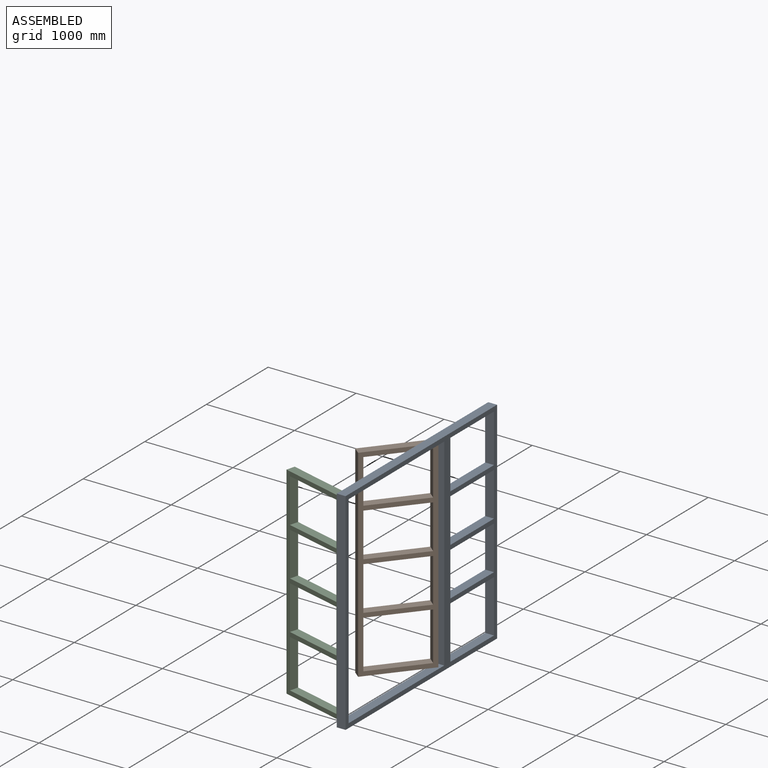
[diagram: assembled view]
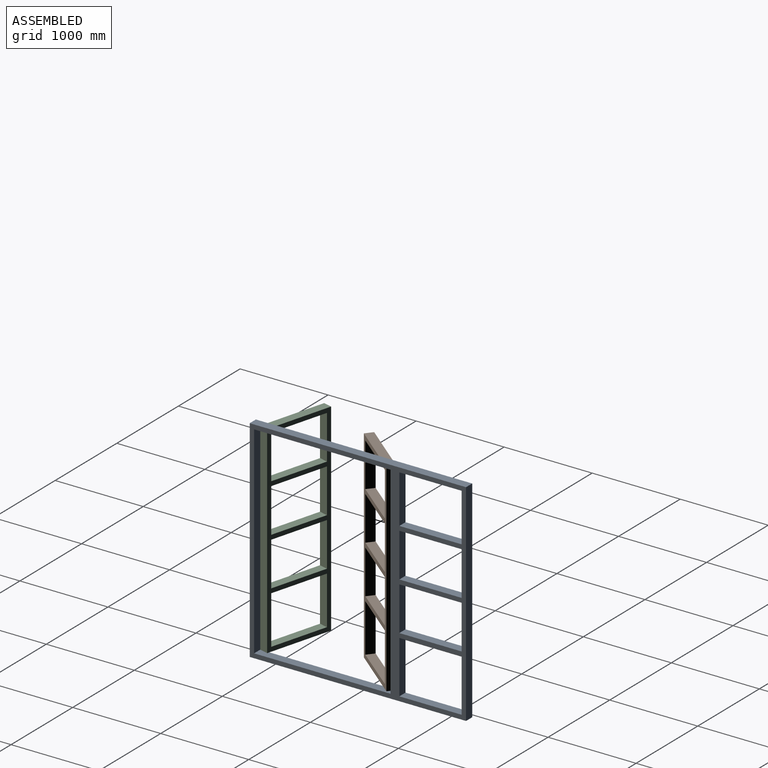
[diagram: assembled view, second angle]
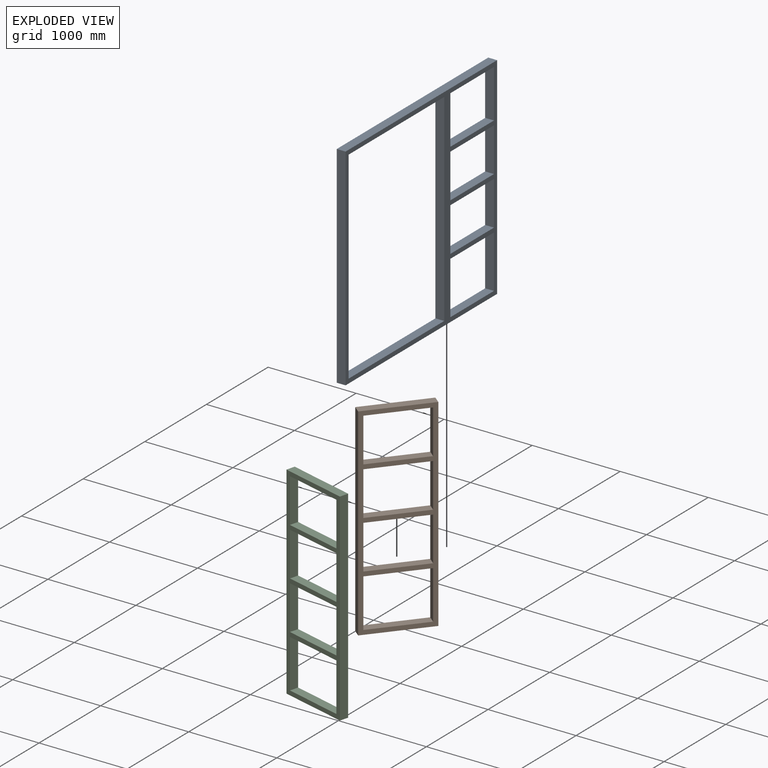
[diagram: exploded view]
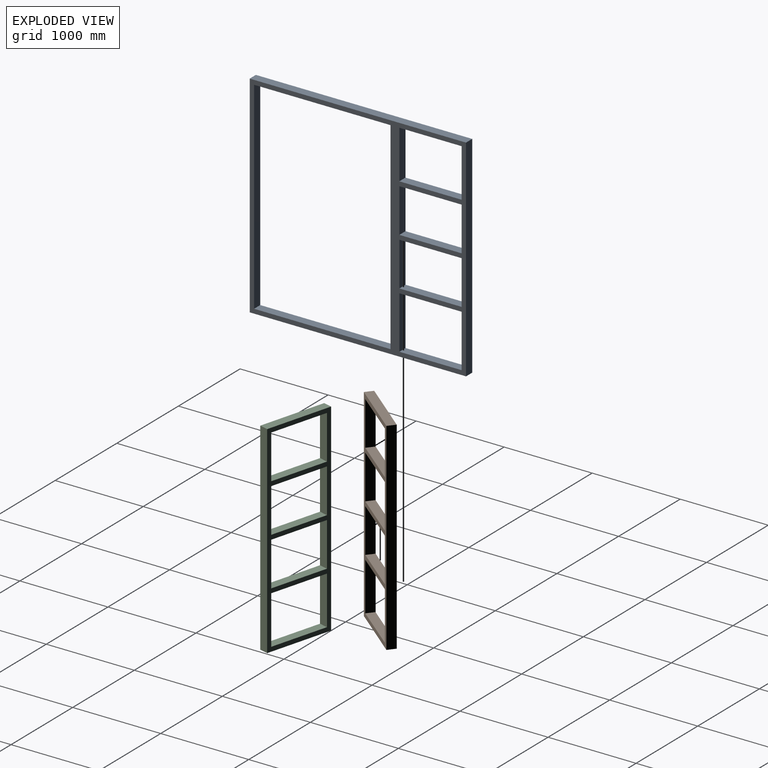
[diagram: exploded view, second angle]
ASSEMBLY  parts=3 mates=2
PART A: 26 faces, bbox 100x2457.5x2400 mm
  f0: plane 2457.54x100mm, normal (0,0,1), area 245753.9mm2, adj f1,f7,f8,f25
  f1: plane 2400x100mm, normal (0,-1,0), area 240000mm2, adj f0,f2,f7,f8
  f2: plane 2457.54x100mm, normal (0,0,-1), area 245753.9mm2, adj f1,f7,f8,f25
  f3: plane 2300x100mm, normal (0,-1,0), area 230000mm2, adj f4,f6,f7,f8
  f4: plane 1550x100mm, normal (0,0,1), area 155000mm2, adj f3,f5,f7,f8
  f5: plane 2300x100mm, normal (0,1,0), area 230000mm2, adj f4,f6,f7,f8
  f6: plane 1550x100mm, normal (0,0,-1), area 155000mm2, adj f3,f5,f7,f8
  f7: plane 2457.54x2400mm, normal (1,0,0), area 811884.7mm2, adj f0,f1,f2,f3,f4,f5,f6,f9
  f8: plane 2457.54x2400mm, normal (-1,0,0), area 811884.7mm2, adj f0,f1,f2,f3,f4,f5,f6,f9
  f9: plane 707.54x100mm, normal (0,0,1), area 70753.9mm2, adj f7,f8,f10,f21
  f10: plane 550x100mm, normal (0,1,0), area 55000mm2, adj f7,f8,f9,f11
  f11: plane 707.54x100mm, normal (0,0,-1), area 70753.9mm2, adj f7,f8,f10,f21
  f12: plane 500x100mm, normal (0,1,0), area 50000mm2, adj f7,f8,f13,f22
  f13: plane 707.54x100mm, normal (0,0,-1), area 70753.9mm2, adj f7,f8,f12,f14
  f14: plane 500x100mm, normal (0,-1,0), area 50000mm2, adj f7,f8,f13,f22
  f15: plane 500x100mm, normal (0,1,0), area 50000mm2, adj f7,f8,f16,f23
  f16: plane 707.54x100mm, normal (0,0,-1), area 70753.9mm2, adj f7,f8,f15,f17
  f17: plane 500x100mm, normal (0,-1,0), area 50000mm2, adj f7,f8,f16,f23
  f18: plane 600x100mm, normal (0,1,0), area 60000mm2, adj f7,f8,f19,f24
  f19: plane 707.54x100mm, normal (0,0,-1), area 70753.9mm2, adj f7,f8,f18,f20
  f20: plane 600x100mm, normal (0,-1,0), area 60000mm2, adj f7,f8,f19,f24
  f21: plane 550x100mm, normal (0,-1,0), area 55000mm2, adj f7,f8,f9,f11
  f22: plane 707.54x100mm, normal (0,0,1), area 70753.9mm2, adj f7,f8,f12,f14
  f23: plane 707.54x100mm, normal (0,0,1), area 70753.9mm2, adj f7,f8,f15,f17
  f24: plane 707.54x100mm, normal (0,0,1), area 70753.9mm2, adj f7,f8,f18,f20
  f25: plane 2400x100mm, normal (0,1,0), area 240000mm2, adj f0,f2,f7,f8
PART B: 22 faces, bbox 100x775x2300 mm
  f0: plane 675x100mm, normal (0,0,1), area 67500mm2, adj f1,f19,f20,f21
  f1: plane 500x100mm, normal (0,1,0), area 50000mm2, adj f0,f2,f20,f21
  f2: plane 675x100mm, normal (0,0,-1), area 67500mm2, adj f1,f19,f20,f21
  f3: plane 775x100mm, normal (0,0,-1), area 77500mm2, adj f4,f15,f20,f21
  f4: plane 2300x100mm, normal (0,1,0), area 230000mm2, adj f3,f5,f20,f21
  f5: plane 775x100mm, normal (0,0,1), area 77500mm2, adj f4,f15,f20,f21
  f6: plane 500x100mm, normal (0,1,0), area 50000mm2, adj f7,f16,f20,f21
  f7: plane 675x100mm, normal (0,0,-1), area 67500mm2, adj f6,f8,f20,f21
  f8: plane 500x100mm, normal (0,-1,0), area 50000mm2, adj f7,f16,f20,f21
  f9: plane 500x100mm, normal (0,1,0), area 50000mm2, adj f10,f17,f20,f21
  f10: plane 675x100mm, normal (0,0,-1), area 67500mm2, adj f9,f11,f20,f21
  f11: plane 500x100mm, normal (0,-1,0), area 50000mm2, adj f10,f17,f20,f21
  f12: plane 675x100mm, normal (0,0,-1), area 67500mm2, adj f13,f18,f20,f21
  f13: plane 550x100mm, normal (0,-1,0), area 55000mm2, adj f12,f14,f20,f21
  f14: plane 675x100mm, normal (0,0,1), area 67500mm2, adj f13,f18,f20,f21
  f15: plane 2300x100mm, normal (0,-1,0), area 230000mm2, adj f3,f5,f20,f21
  f16: plane 675x100mm, normal (0,0,1), area 67500mm2, adj f6,f8,f20,f21
  f17: plane 675x100mm, normal (0,0,1), area 67500mm2, adj f9,f11,f20,f21
  f18: plane 550x100mm, normal (0,1,0), area 55000mm2, adj f12,f14,f20,f21
  f19: plane 500x100mm, normal (0,-1,0), area 50000mm2, adj f0,f2,f20,f21
  f20: plane 2300x775mm, normal (1,0,0), area 398750mm2, adj f0,f1,f2,f3,f4,f5,f6,f7
  f21: plane 2300x775mm, normal (-1,0,0), area 398750mm2, adj f0,f1,f2,f3,f4,f5,f6,f7
PART C: same geometry as B
PLACE A t=(1137.98,602.65,58.45)mm
PLACE B rot(axis=(0,0,-1),39.3deg) t=(647.11,777.93,58.45)mm
PLACE C rot(axis=(0,0,1),74.9deg) t=(1137.98,-172.35,58.45)mm
MATE revolute C.f3 <-> A.f4  axis (0,0,-1) through (1137.98,-172.35,58.45)mm
MATE revolute B.f3 <-> A.f4  axis (0,0,-1) through (1137.98,1377.65,58.45)mm
